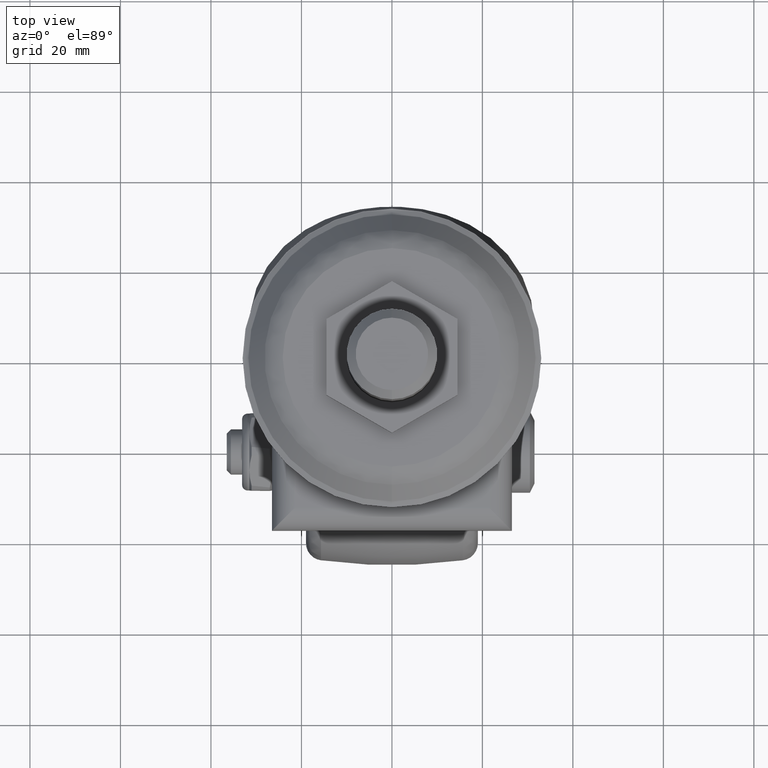
[diagram: clean part render]
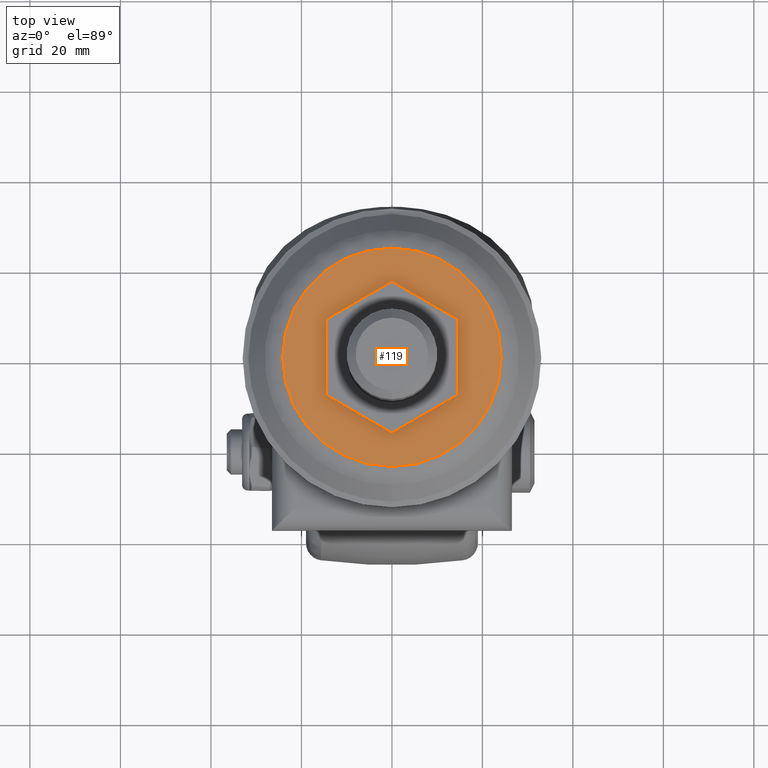
[diagram: same view with one face highlighted and labeled with its STEP entity id]
A machine part, top view. The second image highlights one B-rep face of the part: STEP entity #119.
In plain terms, the highlighted planar face has unit normal (0, 0, 1).
Its self-contained STEP definition (entity closure, byte-faithful):
#119=ADVANCED_FACE('',(#354,#355),#353,.T.);
#353=PLANE('',#2057);
#354=FACE_OUTER_BOUND('',#2058,.T.);
#355=FACE_BOUND('',#2059,.T.);
#2054=CARTESIAN_POINT('',(-5.01744344580E+01,0.00000000000E+00,-5.55224802380E+01));
#2055=DIRECTION('',(0.00000000000E+00,1.00000000000E+00,0.00000000000E+00));
#2056=DIRECTION('',(0.00000000000E+00,0.00000000000E+00,1.00000000000E+00));
#2057=AXIS2_PLACEMENT_3D('',#2054,#2055,#2056);
#2058=EDGE_LOOP('',(#3712,#3713));
#2059=EDGE_LOOP('',(#3714,#3715,#3716,#3717,#3718,#3719));
#3712=ORIENTED_EDGE('',*,*,#4467,.T.);
#3713=ORIENTED_EDGE('',*,*,#4468,.T.);
#3714=ORIENTED_EDGE('',*,*,#4469,.F.);
#3715=ORIENTED_EDGE('',*,*,#4470,.F.);
#3716=ORIENTED_EDGE('',*,*,#4471,.F.);
#3717=ORIENTED_EDGE('',*,*,#4461,.F.);
#3718=ORIENTED_EDGE('',*,*,#4457,.F.);
#3719=ORIENTED_EDGE('',*,*,#4464,.F.);
#4457=EDGE_CURVE('',#4937,#4938,#4939,.T.);
#4461=EDGE_CURVE('',#4938,#4965,#4966,.T.);
#4464=EDGE_CURVE('',#4985,#4937,#4986,.T.);
#4467=EDGE_CURVE('',#5005,#5006,#5007,.T.);
#4468=EDGE_CURVE('',#5006,#5005,#5013,.T.);
#4469=EDGE_CURVE('',#5019,#4985,#5020,.T.);
#4470=EDGE_CURVE('',#5026,#5019,#5027,.T.);
#4471=EDGE_CURVE('',#4965,#5026,#5033,.T.);
#4937=VERTEX_POINT('',#7427);
#4938=VERTEX_POINT('',#7428);
#4939=LINE('',#7429,#7430);
#4965=VERTEX_POINT('',#7443);
#4966=LINE('',#7444,#7445);
#4985=VERTEX_POINT('',#7454);
#4986=LINE('',#7455,#7456);
#5005=VERTEX_POINT('',#7465);
#5006=VERTEX_POINT('',#7466);
#5007=CIRCLE('',#7470,2.41401860340E+01);
#5013=CIRCLE('',#7474,2.41401860340E+01);
#5019=VERTEX_POINT('',#7475);
#5020=LINE('',#7476,#7477);
#5026=VERTEX_POINT('',#7479);
#5027=LINE('',#7480,#7481);
#5033=LINE('',#7483,#7484);
#7427=CARTESIAN_POINT('',(1.44999752696E+01,9.32587340685E-12,-8.37157589060E+00));
#7428=CARTESIAN_POINT('',(-2.07303912418E-05,9.32587340685E-12,-1.67431560000E+01));
#7429=CARTESIAN_POINT('',(1.44999772696E+01,9.32587340685E-12,-8.37157935470E+00));
#7430=VECTOR('',#7431,1.67431549455E+01);
#7431=DIRECTION('',(-8.66025432317E-01,0.00000000000E+00,-4.99999950581E-01));
#7443=CARTESIAN_POINT('',(-1.45000247304E+01,0.00000000000E+00,-8.37158010000E+00));
#7444=CARTESIAN_POINT('',(-2.15964164144E-05,9.32587340685E-12,-1.67431575000E+01));
#7445=VECTOR('',#7446,1.67431597690E+01);
#7446=DIRECTION('',(-8.66025489456E-01,0.00000000000E+00,4.99999851612E-01));
#7454=CARTESIAN_POINT('',(1.44999792696E+01,9.32587340685E-12,8.37158020000E+00));
#7455=CARTESIAN_POINT('',(1.44999752696E+01,9.32587340685E-12,8.37158020000E+00));
#7456=VECTOR('',#7457,1.67431560906E+01);
#7457=DIRECTION('',(0.00000000000E+00,0.00000000000E+00,-1.00000000000E+00));
#7465=CARTESIAN_POINT('',(0.00000000000E+00,-4.84130210321E-06,2.41401336741E+01));
#7466=CARTESIAN_POINT('',(-1.18423789293E-15,-4.84130210321E-06,-2.41402383939E+01));
#7467=CARTESIAN_POINT('',(0.00000000000E+00,-4.84130210321E-06,-5.23598743740E-05));
#7468=DIRECTION('',(0.00000000000E+00,1.00000000000E+00,-0.00000000000E+00));
#7469=DIRECTION('',(-1.22460635382E-16,0.00000000000E+00,1.00000000000E+00));
#7470=AXIS2_PLACEMENT_3D('',#7467,#7468,#7469);
#7471=CARTESIAN_POINT('',(0.00000000000E+00,-4.84130210321E-06,-5.23598743740E-05));
#7472=DIRECTION('',(0.00000000000E+00,1.00000000000E+00,-0.00000000000E+00));
#7473=DIRECTION('',(-1.22460635382E-16,0.00000000000E+00,1.00000000000E+00));
#7474=AXIS2_PLACEMENT_3D('',#7471,#7472,#7473);
#7475=CARTESIAN_POINT('',(-2.07303916397E-05,9.32587340685E-12,1.67431580000E+01));
#7476=CARTESIAN_POINT('',(-2.07303916397E-05,9.32587340685E-12,1.67431580000E+01));
#7477=VECTOR('',#7478,1.67431572549E+01);
#7478=DIRECTION('',(8.66025432317E-01,0.00000000000E+00,-4.99999950581E-01));
#7479=CARTESIAN_POINT('',(-1.45000247304E+01,9.32587340685E-12,8.37157920000E+00));
#7480=CARTESIAN_POINT('',(-1.45000251201E+01,9.32587340685E-12,8.37157987500E+00));
#7481=VECTOR('',#7482,1.67431612190E+01);
#7482=DIRECTION('',(8.66025489456E-01,0.00000000000E+00,4.99999851612E-01));
#7483=CARTESIAN_POINT('',(-1.45000247304E+01,9.32587340685E-12,-8.37158010000E+00));
#7484=VECTOR('',#7485,1.67431593000E+01);
#7485=DIRECTION('',(0.00000000000E+00,0.00000000000E+00,1.00000000000E+00));